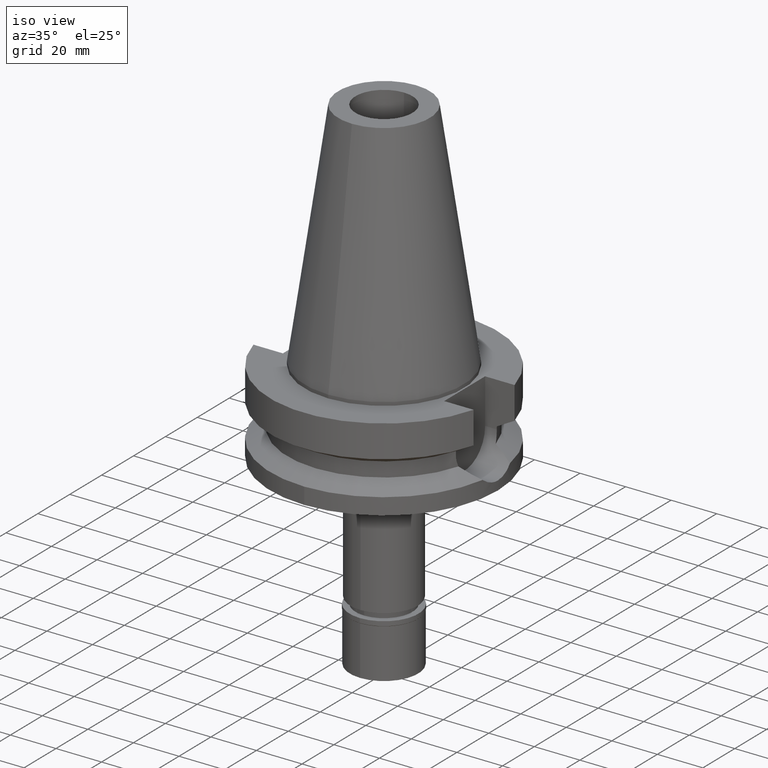
[diagram: clean part render]
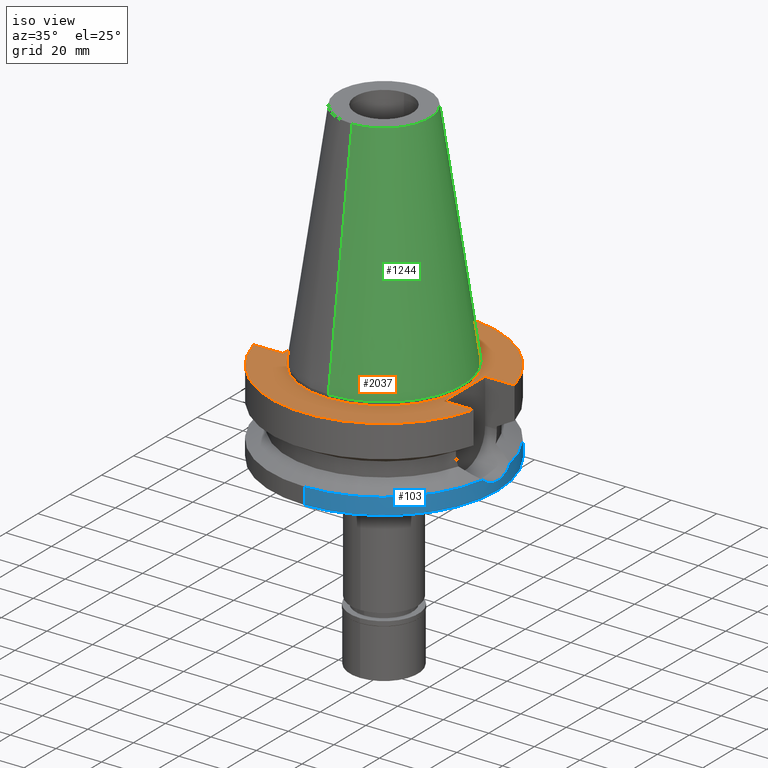
[diagram: same view with three faces highlighted in distinct colors, each labeled with its STEP entity id]
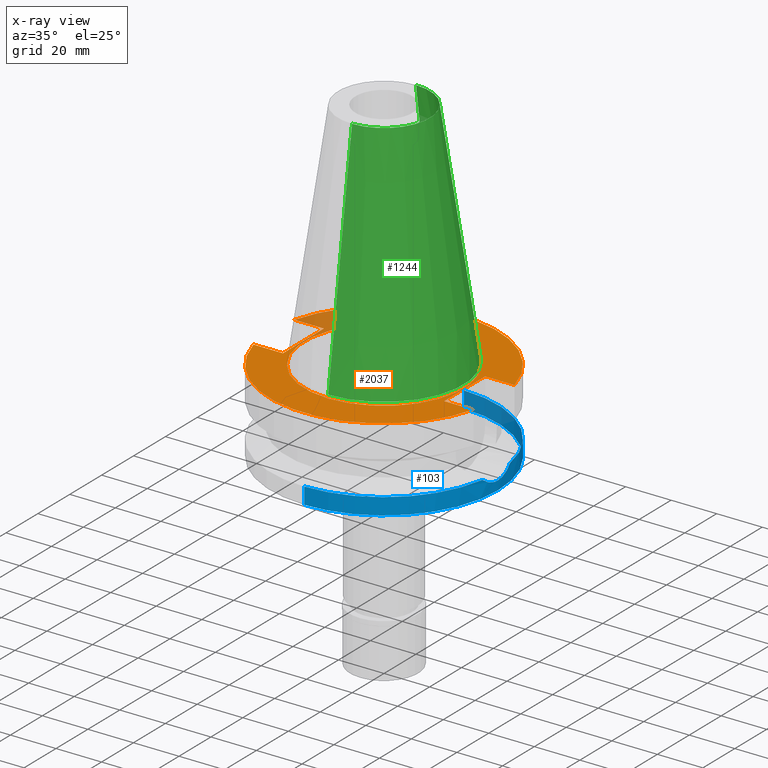
[diagram: x-ray of the same camera — body ghosted, the three highlighted faces saturated]
A machine part, iso view with three faces highlighted in distinct colors.
The next image is the same camera in x-ray (body ghosted, the three faces saturated) — at least one of them is partly hidden behind the body in this view.
Their STEP definitions:

[orange] entity #2037 — the highlighted planar face has unit normal (0, 0, -1).
#58 = EDGE_CURVE ( 'NONE', #3002, #1546, #2733, .T. ) ;
#101 = DIRECTION ( 'NONE',  ( 1.000000000000000000, 0.0000000000000000000, 0.0000000000000000000 ) ) ;
#130 = DIRECTION ( 'NONE',  ( 1.000000000000000000, 0.0000000000000000000, 0.0000000000000000000 ) ) ;
#156 = LINE ( 'NONE', #1864, #917 ) ;
#216 = EDGE_CURVE ( 'NONE', #2136, #1557, #2748, .T. ) ;
#270 = VECTOR ( 'NONE', #624, 1000.000000000000000 ) ;
#386 = CARTESIAN_POINT ( 'NONE',  ( 0.0000000000000000000, 2.601027336708999694E-14, -1.500000000000000000 ) ) ;
#501 = CARTESIAN_POINT ( 'NONE',  ( 0.0000000000000000000, 2.601027336708999694E-14, -1.500000000000000000 ) ) ;
#520 = VERTEX_POINT ( 'NONE', #1353 ) ;
#557 = EDGE_CURVE ( 'NONE', #2418, #1747, #1865, .T. ) ;
#565 = LINE ( 'NONE', #2500, #621 ) ;
#576 = CARTESIAN_POINT ( 'NONE',  ( -48.32057015392000210, -12.84999999999999964, -1.500000000000000000 ) ) ;
#608 = EDGE_CURVE ( 'NONE', #520, #1823, #3058, .T. ) ;
#619 = LINE ( 'NONE', #865, #3074 ) ;
#621 = VECTOR ( 'NONE', #101, 1000.000000000000000 ) ;
#624 = DIRECTION ( 'NONE',  ( -1.000000000000000000, 0.0000000000000000000, 0.0000000000000000000 ) ) ;
#691 = EDGE_CURVE ( 'NONE', #1823, #1114, #1102, .T. ) ;
#769 = CARTESIAN_POINT ( 'NONE',  ( 0.0000000000000000000, 34.92499999999999716, -1.500000000000000000 ) ) ;
#809 = AXIS2_PLACEMENT_3D ( 'NONE', #957, #1498, #973 ) ;
#838 = VECTOR ( 'NONE', #2952, 1000.000000000000000 ) ;
#865 = CARTESIAN_POINT ( 'NONE',  ( -35.39999999999999858, -12.84999999999999964, -1.500000000000000000 ) ) ;
#908 = CIRCLE ( 'NONE', #809, 34.92499999999999716 ) ;
#917 = VECTOR ( 'NONE', #130, 1000.000000000000000 ) ;
#957 = CARTESIAN_POINT ( 'NONE',  ( 0.0000000000000000000, 2.601027336708999694E-14, -1.500000000000000000 ) ) ;
#967 = ORIENTED_EDGE ( 'NONE', *, *, #2258, .F. ) ;
#971 = ORIENTED_EDGE ( 'NONE', *, *, #216, .F. ) ;
#973 = DIRECTION ( 'NONE',  ( 0.0000000000000000000, 1.000000000000000000, 0.0000000000000000000 ) ) ;
#991 = CARTESIAN_POINT ( 'NONE',  ( -48.32057015392000210, 12.84999999999999964, -1.500000000000000000 ) ) ;
#1001 = AXIS2_PLACEMENT_3D ( 'NONE', #2864, #2567, #1398 ) ;
#1102 = CIRCLE ( 'NONE', #1001, 50.00000000000000000 ) ;
#1114 = VERTEX_POINT ( 'NONE', #2793 ) ;
#1136 = DIRECTION ( 'NONE',  ( 0.0000000000000000000, 0.0000000000000000000, 1.000000000000000000 ) ) ;
#1192 = DIRECTION ( 'NONE',  ( 0.0000000000000000000, -1.000000000000000000, 0.0000000000000000000 ) ) ;
#1239 = PLANE ( 'NONE',  #1875 ) ;
#1280 = ORIENTED_EDGE ( 'NONE', *, *, #2812, .T. ) ;
#1353 = CARTESIAN_POINT ( 'NONE',  ( -35.39999999999999858, 12.84999999999999964, -1.500000000000000000 ) ) ;
#1398 = DIRECTION ( 'NONE',  ( 0.0000000000000000000, 1.000000000000000000, 0.0000000000000000000 ) ) ;
#1428 = DIRECTION ( 'NONE',  ( 0.0000000000000000000, 0.0000000000000000000, -1.000000000000000000 ) ) ;
#1429 = CARTESIAN_POINT ( 'NONE',  ( -35.39999999999999858, -12.84999999999999964, -1.500000000000000000 ) ) ;
#1454 = AXIS2_PLACEMENT_3D ( 'NONE', #386, #1136, #2775 ) ;
#1485 = CARTESIAN_POINT ( 'NONE',  ( 0.0000000000000000000, -34.92499999999999716, -1.500000000000000000 ) ) ;
#1498 = DIRECTION ( 'NONE',  ( 0.0000000000000000000, 0.0000000000000000000, 1.000000000000000000 ) ) ;
#1519 = ORIENTED_EDGE ( 'NONE', *, *, #557, .F. ) ;
#1546 = VERTEX_POINT ( 'NONE', #2465 ) ;
#1557 = VERTEX_POINT ( 'NONE', #576 ) ;
#1638 = LINE ( 'NONE', #3037, #2870 ) ;
#1747 = VERTEX_POINT ( 'NONE', #769 ) ;
#1823 = VERTEX_POINT ( 'NONE', #991 ) ;
#1841 = DIRECTION ( 'NONE',  ( -1.000000000000000000, 0.0000000000000000000, 0.0000000000000000000 ) ) ;
#1864 = CARTESIAN_POINT ( 'NONE',  ( 35.39999999999999858, 12.84999999999999964, -1.500000000000000000 ) ) ;
#1865 = CIRCLE ( 'NONE', #1454, 34.92499999999999716 ) ;
#1875 = AXIS2_PLACEMENT_3D ( 'NONE', #2361, #2553, #2323 ) ;
#1971 = CARTESIAN_POINT ( 'NONE',  ( 35.39999999999999858, 12.84999999999999964, -1.500000000000000000 ) ) ;
#1982 = ORIENTED_EDGE ( 'NONE', *, *, #58, .F. ) ;
#2037 = ADVANCED_FACE ( 'NONE', ( #3049, #2811 ), #1239, .F. ) ;
#2085 = EDGE_CURVE ( 'NONE', #2939, #1557, #619, .T. ) ;
#2136 = VERTEX_POINT ( 'NONE', #2266 ) ;
#2243 = ORIENTED_EDGE ( 'NONE', *, *, #691, .F. ) ;
#2258 = EDGE_CURVE ( 'NONE', #2939, #520, #1638, .T. ) ;
#2266 = CARTESIAN_POINT ( 'NONE',  ( 48.32057015392000210, -12.84999999999999964, -1.500000000000000000 ) ) ;
#2285 = ORIENTED_EDGE ( 'NONE', *, *, #2085, .T. ) ;
#2291 = CARTESIAN_POINT ( 'NONE',  ( 35.39999999999999858, 12.84999999999999964, -1.500000000000000000 ) ) ;
#2323 = DIRECTION ( 'NONE',  ( 0.0000000000000000000, -1.000000000000000000, 0.0000000000000000000 ) ) ;
#2361 = CARTESIAN_POINT ( 'NONE',  ( 0.0000000000000000000, 1.206277097159999845E-14, -1.500000000000000000 ) ) ;
#2403 = EDGE_CURVE ( 'NONE', #1747, #2418, #908, .T. ) ;
#2418 = VERTEX_POINT ( 'NONE', #1485 ) ;
#2465 = CARTESIAN_POINT ( 'NONE',  ( 35.39999999999999858, -12.84999999999999964, -1.500000000000000000 ) ) ;
#2500 = CARTESIAN_POINT ( 'NONE',  ( 35.39999999999999858, -12.84999999999999964, -1.500000000000000000 ) ) ;
#2553 = DIRECTION ( 'NONE',  ( 0.0000000000000000000, 0.0000000000000000000, -1.000000000000000000 ) ) ;
#2558 = CARTESIAN_POINT ( 'NONE',  ( -35.39999999999999858, 12.84999999999999964, -1.500000000000000000 ) ) ;
#2567 = DIRECTION ( 'NONE',  ( 0.0000000000000000000, 0.0000000000000000000, -1.000000000000000000 ) ) ;
#2568 = DIRECTION ( 'NONE',  ( 0.0000000000000000000, 1.000000000000000000, 0.0000000000000000000 ) ) ;
#2615 = ORIENTED_EDGE ( 'NONE', *, *, #3115, .F. ) ;
#2733 = LINE ( 'NONE', #2291, #838 ) ;
#2746 = EDGE_LOOP ( 'NONE', ( #2828, #1519 ) ) ;
#2748 = CIRCLE ( 'NONE', #2850, 50.00000000000000000 ) ;
#2774 = EDGE_LOOP ( 'NONE', ( #2285, #971, #2615, #1982, #1280, #2243, #2780, #967 ) ) ;
#2775 = DIRECTION ( 'NONE',  ( 0.0000000000000000000, -1.000000000000000000, 0.0000000000000000000 ) ) ;
#2780 = ORIENTED_EDGE ( 'NONE', *, *, #608, .F. ) ;
#2793 = CARTESIAN_POINT ( 'NONE',  ( 48.32057015392000210, 12.84999999999999964, -1.500000000000000000 ) ) ;
#2811 = FACE_BOUND ( 'NONE', #2746, .T. ) ;
#2812 = EDGE_CURVE ( 'NONE', #3002, #1114, #156, .T. ) ;
#2828 = ORIENTED_EDGE ( 'NONE', *, *, #2403, .F. ) ;
#2850 = AXIS2_PLACEMENT_3D ( 'NONE', #501, #1428, #1192 ) ;
#2864 = CARTESIAN_POINT ( 'NONE',  ( 0.0000000000000000000, 2.601027336708999694E-14, -1.500000000000000000 ) ) ;
#2870 = VECTOR ( 'NONE', #2568, 1000.000000000000000 ) ;
#2939 = VERTEX_POINT ( 'NONE', #1429 ) ;
#2952 = DIRECTION ( 'NONE',  ( 0.0000000000000000000, -1.000000000000000000, 0.0000000000000000000 ) ) ;
#3002 = VERTEX_POINT ( 'NONE', #1971 ) ;
#3037 = CARTESIAN_POINT ( 'NONE',  ( -35.39999999999999858, -12.84999999999999964, -1.500000000000000000 ) ) ;
#3049 = FACE_OUTER_BOUND ( 'NONE', #2774, .T. ) ;
#3058 = LINE ( 'NONE', #2558, #270 ) ;
#3074 = VECTOR ( 'NONE', #1841, 1000.000000000000000 ) ;
#3115 = EDGE_CURVE ( 'NONE', #1546, #2136, #565, .T. ) ;

[blue] entity #103 — the highlighted cylindrical surface (partial cylindrical patch) has radius 50 mm, axis along (0, 0, -1).
#37 = ORIENTED_EDGE ( 'NONE', *, *, #1073, .F. ) ;
#57 = EDGE_CURVE ( 'NONE', #1677, #1639, #264, .T. ) ;
#68 = AXIS2_PLACEMENT_3D ( 'NONE', #358, #2301, #1093 ) ;
#70 = CARTESIAN_POINT ( 'NONE',  ( 49.75681412769522183, -4.924294299731083235, -33.01930483956995488 ) ) ;
#88 = CARTESIAN_POINT ( 'NONE',  ( 49.73404098627922565, -5.148335372783573227, -32.92469446692175694 ) ) ;
#103 = ADVANCED_FACE ( 'NONE', ( #858 ), #2536, .T. ) ;
#125 = CARTESIAN_POINT ( 'NONE',  ( 49.79509875745610259, 4.521875388834661891, -33.17810981395287229 ) ) ;
#128 = CARTESIAN_POINT ( 'NONE',  ( 49.98261190536401699, -1.500633726765293607, -33.93573757106626942 ) ) ;
#140 = CARTESIAN_POINT ( 'NONE',  ( 49.79347791494136288, 4.539715724449447265, -33.17137768956639832 ) ) ;
#153 = B_SPLINE_CURVE_WITH_KNOTS ( 'NONE', 3,
 ( #2837, #166, #1367, #1156, #1107, #3094, #2332, #932, #2122, #3043, #125, #140, #3077, #919, #610, #2545, #671, #883, #3030 ),
 .UNSPECIFIED., .F., .F.,
 ( 4, 2, 2, 1, 1, 1, 1, 1, 2, 2, 2, 4 ),
 ( 0.0000000000000000000, 0.2500000000000116018, 0.3750000000000175415, 0.4375000000000204836, 0.4687500000000219269, 0.4843750000000222045, 0.4921875000000227596, 0.4960937500000232037, 0.4980468750000228706, 0.5000000000000225375, 0.7500000000000112133, 1.000000000000000000 ),
 .UNSPECIFIED. ) ;
#166 = CARTESIAN_POINT ( 'NONE',  ( 50.00000000000002132, 0.7410986930392226002, -34.00000000000000711 ) ) ;
#209 = DIRECTION ( 'NONE',  ( 0.0000000000000000000, -2.054527022025999694E-14, -1.000000000000000000 ) ) ;
#241 = ORIENTED_EDGE ( 'NONE', *, *, #57, .T. ) ;
#264 = CIRCLE ( 'NONE', #1199, 50.00000000000000000 ) ;
#287 = VERTEX_POINT ( 'NONE', #1983 ) ;
#356 = CARTESIAN_POINT ( 'NONE',  ( 49.76777238602569753, -4.813761785251925218, -33.06473290383409136 ) ) ;
#358 = CARTESIAN_POINT ( 'NONE',  ( 0.0000000000000000000, 2.601027336708999694E-14, 112.3900000000000006 ) ) ;
#437 = CARTESIAN_POINT ( 'NONE',  ( 0.0000000000000000000, 2.601027336708999694E-14, -38.00000000000000000 ) ) ;
#493 = DIRECTION ( 'NONE',  ( 0.0000000000000000000, 0.0000000000000000000, -1.000000000000000000 ) ) ;
#533 = CARTESIAN_POINT ( 'NONE',  ( 49.66531744478927379, -5.772426571267776474, -32.63572039557347892 ) ) ;
#547 = VECTOR ( 'NONE', #209, 1000.000000000000000 ) ;
#594 = CIRCLE ( 'NONE', #850, 50.00000000000000000 ) ;
#610 = CARTESIAN_POINT ( 'NONE',  ( 49.73972550773450507, 5.127766567620081872, -32.94800242017353753 ) ) ;
#626 = EDGE_CURVE ( 'NONE', #1294, #1639, #153, .T. ) ;
#671 = CARTESIAN_POINT ( 'NONE',  ( 49.49359661729344850, 7.117097516581662120, -31.87764506110919882 ) ) ;
#719 = CARTESIAN_POINT ( 'NONE',  ( 49.26250064874000145, 8.556052234130000045, -30.73730776426999967 ) ) ;
#789 = VERTEX_POINT ( 'NONE', #2911 ) ;
#797 = CARTESIAN_POINT ( 'NONE',  ( 49.78563763144784815, -4.625094769537975381, -33.13881278609864722 ) ) ;
#850 = AXIS2_PLACEMENT_3D ( 'NONE', #1720, #493, #2188 ) ;
#858 = FACE_OUTER_BOUND ( 'NONE', #2531, .T. ) ;
#883 = CARTESIAN_POINT ( 'NONE',  ( 49.38718636596117761, 7.838159208524845489, -31.37798086840150447 ) ) ;
#919 = CARTESIAN_POINT ( 'NONE',  ( 49.79171236025676706, 4.559090087505518696, -33.16404260905685675 ) ) ;
#932 = CARTESIAN_POINT ( 'NONE',  ( 49.82079234875429563, 4.230048365264067911, -33.28454251584690837 ) ) ;
#979 = VERTEX_POINT ( 'NONE', #983 ) ;
#983 = CARTESIAN_POINT ( 'NONE',  ( 0.0000000000000000000, -50.00000000000000000, -38.00000000000000000 ) ) ;
#1047 = CARTESIAN_POINT ( 'NONE',  ( 49.86089524291224251, -3.802281370894036172, -33.45152773113399292 ) ) ;
#1051 = VERTEX_POINT ( 'NONE', #1947 ) ;
#1073 = EDGE_CURVE ( 'NONE', #287, #1294, #1885, .T. ) ;
#1092 = CARTESIAN_POINT ( 'NONE',  ( 49.78850586346350582, -4.594055356242410681, -33.15072133027130263 ) ) ;
#1093 = DIRECTION ( 'NONE',  ( 0.0000000000000000000, -1.000000000000000000, 0.0000000000000000000 ) ) ;
#1107 = CARTESIAN_POINT ( 'NONE',  ( 49.90869784561251521, 3.032821729406113942, -33.64331055718601249 ) ) ;
#1156 = CARTESIAN_POINT ( 'NONE',  ( 49.93043645380000584, 2.648747844465216605, -33.73005492428349328 ) ) ;
#1170 = LINE ( 'NONE', #1389, #3117 ) ;
#1198 = LINE ( 'NONE', #1948, #547 ) ;
#1199 = AXIS2_PLACEMENT_3D ( 'NONE', #2521, #1326, #2973 ) ;
#1246 = CARTESIAN_POINT ( 'NONE',  ( 49.62581592551390486, -6.100685968983930785, -32.46624463441564501 ) ) ;
#1290 = CARTESIAN_POINT ( 'NONE',  ( 49.79079948641094688, -4.569077029215530494, -33.16024877063336618 ) ) ;
#1294 = VERTEX_POINT ( 'NONE', #2856 ) ;
#1326 = DIRECTION ( 'NONE',  ( 0.0000000000000000000, 0.0000000000000000000, -1.000000000000000000 ) ) ;
#1367 = CARTESIAN_POINT ( 'NONE',  ( 49.98260911345001745, 1.500697552022849823, -33.93573404320405018 ) ) ;
#1389 = CARTESIAN_POINT ( 'NONE',  ( 0.0000000000000000000, 50.00000000000000000, -30.73730776426999967 ) ) ;
#1482 = CARTESIAN_POINT ( 'NONE',  ( 49.38719034089409377, -7.838136322342054818, -31.37800129283974115 ) ) ;
#1590 = EDGE_CURVE ( 'NONE', #979, #789, #2274, .T. ) ;
#1639 = VERTEX_POINT ( 'NONE', #719 ) ;
#1677 = VERTEX_POINT ( 'NONE', #1988 ) ;
#1683 = DIRECTION ( 'NONE',  ( 0.0000000000000000000, 2.152361642122000014E-14, -1.000000000000000000 ) ) ;
#1720 = CARTESIAN_POINT ( 'NONE',  ( 0.0000000000000000000, 0.0000000000000000000, -30.73730776426999967 ) ) ;
#1774 = CARTESIAN_POINT ( 'NONE',  ( 49.78972506718459101, -4.580790312870194114, -33.15578537449392371 ) ) ;
#1805 = EDGE_CURVE ( 'NONE', #287, #1051, #594, .T. ) ;
#1885 = B_SPLINE_CURVE_WITH_KNOTS ( 'NONE', 3,
 ( #2677, #1482, #2442, #1246, #533, #2000, #88, #70, #356, #2951, #797, #1092, #1774, #2718, #1290, #1047, #2016, #128, #3080, #2380 ),
 .UNSPECIFIED., .F., .F.,
 ( 4, 2, 2, 2, 1, 1, 1, 1, 2, 2, 2, 4 ),
 ( 0.0000000000000000000, 0.2499999999999525935, 0.3749999999999290012, 0.4374999999999174549, 0.4687499999999117373, 0.4843749999999090727, 0.4921874999999077960, 0.4960937499999074074, 0.4980468749999072409, 0.4999999999999070743, 0.7499999999999534817, 1.000000000000000000 ),
 .UNSPECIFIED. ) ;
#1947 = CARTESIAN_POINT ( 'NONE',  ( 0.0000000000000000000, -50.00000000000000000, -30.73730776426999967 ) ) ;
#1948 = CARTESIAN_POINT ( 'NONE',  ( 0.0000000000000000000, -50.00000000000000000, -30.73730776426999967 ) ) ;
#1983 = CARTESIAN_POINT ( 'NONE',  ( 49.26250064874000145, -8.556052234130000045, -30.73730776426999967 ) ) ;
#1987 = ORIENTED_EDGE ( 'NONE', *, *, #2449, .T. ) ;
#1988 = CARTESIAN_POINT ( 'NONE',  ( 0.0000000000000000000, 50.00000000000000000, -30.73730776426999967 ) ) ;
#2000 = CARTESIAN_POINT ( 'NONE',  ( 49.71771672566180200, -5.301668118691679865, -32.85661610119427678 ) ) ;
#2016 = CARTESIAN_POINT ( 'NONE',  ( 49.91305952682014180, -3.031241889599813000, -33.66153705284913400 ) ) ;
#2122 = CARTESIAN_POINT ( 'NONE',  ( 49.80628862110419419, 4.396903292038326860, -33.22452887387221665 ) ) ;
#2125 = ORIENTED_EDGE ( 'NONE', *, *, #1805, .T. ) ;
#2188 = DIRECTION ( 'NONE',  ( 0.9852500129747439050, -0.1711210446826074982, 0.0000000000000000000 ) ) ;
#2269 = EDGE_CURVE ( 'NONE', #1677, #789, #1170, .T. ) ;
#2274 = CIRCLE ( 'NONE', #2372, 50.00000000000000000 ) ;
#2301 = DIRECTION ( 'NONE',  ( 0.0000000000000000000, 0.0000000000000000000, -1.000000000000000000 ) ) ;
#2332 = CARTESIAN_POINT ( 'NONE',  ( 49.84837320789218040, 3.895659733551886106, -33.39815592400708510 ) ) ;
#2372 = AXIS2_PLACEMENT_3D ( 'NONE', #437, #2595, #2859 ) ;
#2380 = CARTESIAN_POINT ( 'NONE',  ( 50.00000000000000000, 1.759756218034999780E-14, -34.00000000000000000 ) ) ;
#2442 = CARTESIAN_POINT ( 'NONE',  ( 49.49360537160681872, -7.117033889162193816, -31.87769203011113461 ) ) ;
#2449 = EDGE_CURVE ( 'NONE', #1051, #979, #1198, .T. ) ;
#2498 = ORIENTED_EDGE ( 'NONE', *, *, #626, .F. ) ;
#2521 = CARTESIAN_POINT ( 'NONE',  ( 0.0000000000000000000, 0.0000000000000000000, -30.73730776426999967 ) ) ;
#2531 = EDGE_LOOP ( 'NONE', ( #2125, #1987, #2716, #3020, #241, #2498, #37 ) ) ;
#2536 = CYLINDRICAL_SURFACE ( 'NONE', #68, 50.00000000000000000 ) ;
#2545 = CARTESIAN_POINT ( 'NONE',  ( 49.66986618818009447, 5.762088535499768405, -32.66233170677145381 ) ) ;
#2595 = DIRECTION ( 'NONE',  ( 0.0000000000000000000, 0.0000000000000000000, 1.000000000000000000 ) ) ;
#2677 = CARTESIAN_POINT ( 'NONE',  ( 49.26250064874000145, -8.556052234130000045, -30.73730776426999967 ) ) ;
#2716 = ORIENTED_EDGE ( 'NONE', *, *, #1590, .T. ) ;
#2718 = CARTESIAN_POINT ( 'NONE',  ( 49.79053563887168821, -4.571955316139179715, -33.15915263189389606 ) ) ;
#2837 = CARTESIAN_POINT ( 'NONE',  ( 50.00000000000000000, 1.759756218034999780E-14, -34.00000000000000000 ) ) ;
#2856 = CARTESIAN_POINT ( 'NONE',  ( 50.00000000000000000, 1.759756218034999780E-14, -34.00000000000000000 ) ) ;
#2859 = DIRECTION ( 'NONE',  ( 0.0000000000000000000, -1.000000000000000000, 0.0000000000000000000 ) ) ;
#2911 = CARTESIAN_POINT ( 'NONE',  ( 0.0000000000000000000, 50.00000000000000000, -38.00000000000000000 ) ) ;
#2951 = CARTESIAN_POINT ( 'NONE',  ( 49.77980747408390982, -4.687522623544541744, -33.11462325490769842 ) ) ;
#2973 = DIRECTION ( 'NONE',  ( 0.0000000000000000000, 1.000000000000000000, 0.0000000000000000000 ) ) ;
#3020 = ORIENTED_EDGE ( 'NONE', *, *, #2269, .F. ) ;
#3030 = CARTESIAN_POINT ( 'NONE',  ( 49.26250064874000145, 8.556052234130000045, -30.73730776426999967 ) ) ;
#3043 = CARTESIAN_POINT ( 'NONE',  ( 49.79885843275885549, 4.480234919315823738, -33.19371722165244876 ) ) ;
#3077 = CARTESIAN_POINT ( 'NONE',  ( 49.79239523035390391, 4.551608024957777943, -33.16687999445605328 ) ) ;
#3080 = CARTESIAN_POINT ( 'NONE',  ( 49.99999999999999289, -0.7410781195857881753, -34.00000000000000711 ) ) ;
#3094 = CARTESIAN_POINT ( 'NONE',  ( 49.86956835087501361, 3.608176225507641277, -33.48463187151707388 ) ) ;
#3117 = VECTOR ( 'NONE', #1683, 1000.000000000000000 ) ;

[green] entity #1244 — the highlighted conical surface has half-angle 8.297 deg.
#29 = AXIS2_PLACEMENT_3D ( 'NONE', #1382, #903, #1355 ) ;
#124 = ORIENTED_EDGE ( 'NONE', *, *, #269, .F. ) ;
#126 = VECTOR ( 'NONE', #1273, 1000.000000000000114 ) ;
#231 = EDGE_CURVE ( 'NONE', #1492, #301, #1502, .T. ) ;
#269 = EDGE_CURVE ( 'NONE', #2466, #1492, #1970, .T. ) ;
#273 = CARTESIAN_POINT ( 'NONE',  ( 0.0000000000000000000, -20.07942971896000017, 101.7999999999999972 ) ) ;
#283 = CARTESIAN_POINT ( 'NONE',  ( 0.0000000000000000000, 34.92499999999999716, 4.760636329592999411E-13 ) ) ;
#301 = VERTEX_POINT ( 'NONE', #531 ) ;
#332 = ORIENTED_EDGE ( 'NONE', *, *, #1522, .T. ) ;
#439 = CONICAL_SURFACE ( 'NONE', #2015, 27.50221485948000222, 0.1448099680379422438 ) ;
#531 = CARTESIAN_POINT ( 'NONE',  ( 0.0000000000000000000, -34.92499999999999716, 4.760636329592999411E-13 ) ) ;
#782 = CARTESIAN_POINT ( 'NONE',  ( 0.0000000000000000000, 20.07942971896000017, 101.7999999999999972 ) ) ;
#890 = AXIS2_PLACEMENT_3D ( 'NONE', #2208, #1444, #1493 ) ;
#903 = DIRECTION ( 'NONE',  ( 0.0000000000000000000, 0.0000000000000000000, -1.000000000000000000 ) ) ;
#1138 = EDGE_CURVE ( 'NONE', #2466, #2495, #2667, .T. ) ;
#1190 = DIRECTION ( 'NONE',  ( 0.0000000000000000000, -1.000000000000000000, 0.0000000000000000000 ) ) ;
#1209 = CARTESIAN_POINT ( 'NONE',  ( 0.0000000000000000000, 1.847992019912999597E-14, 50.89999999999999858 ) ) ;
#1244 = ADVANCED_FACE ( 'NONE', ( #2177 ), #439, .T. ) ;
#1273 = DIRECTION ( 'NONE',  ( 0.0000000000000000000, -0.1443043893538948075, -0.9895333461855641000 ) ) ;
#1355 = DIRECTION ( 'NONE',  ( 0.0000000000000000000, 1.000000000000000000, 0.0000000000000000000 ) ) ;
#1382 = CARTESIAN_POINT ( 'NONE',  ( 0.0000000000000000000, 1.847992019912999597E-14, 101.7999999999999972 ) ) ;
#1444 = DIRECTION ( 'NONE',  ( 0.0000000000000000000, 0.0000000000000000000, -1.000000000000000000 ) ) ;
#1492 = VERTEX_POINT ( 'NONE', #283 ) ;
#1493 = DIRECTION ( 'NONE',  ( 0.0000000000000000000, 1.000000000000000000, 0.0000000000000000000 ) ) ;
#1502 = CIRCLE ( 'NONE', #890, 34.92499999999999716 ) ;
#1522 = EDGE_CURVE ( 'NONE', #2495, #301, #1798, .T. ) ;
#1531 = EDGE_LOOP ( 'NONE', ( #2156, #332, #2523, #124 ) ) ;
#1692 = DIRECTION ( 'NONE',  ( 0.0000000000000000000, 0.0000000000000000000, -1.000000000000000000 ) ) ;
#1744 = CARTESIAN_POINT ( 'NONE',  ( 0.0000000000000000000, 20.07942971896000017, 101.7999999999999972 ) ) ;
#1767 = CARTESIAN_POINT ( 'NONE',  ( 0.0000000000000000000, -20.07942971896000017, 101.7999999999999972 ) ) ;
#1798 = LINE ( 'NONE', #1767, #126 ) ;
#1970 = LINE ( 'NONE', #1744, #2058 ) ;
#2015 = AXIS2_PLACEMENT_3D ( 'NONE', #1209, #1692, #1190 ) ;
#2058 = VECTOR ( 'NONE', #2688, 1000.000000000000114 ) ;
#2156 = ORIENTED_EDGE ( 'NONE', *, *, #1138, .T. ) ;
#2177 = FACE_OUTER_BOUND ( 'NONE', #1531, .T. ) ;
#2208 = CARTESIAN_POINT ( 'NONE',  ( 0.0000000000000000000, 1.847992019912999597E-14, 3.979039320256999774E-13 ) ) ;
#2466 = VERTEX_POINT ( 'NONE', #782 ) ;
#2495 = VERTEX_POINT ( 'NONE', #273 ) ;
#2523 = ORIENTED_EDGE ( 'NONE', *, *, #231, .F. ) ;
#2667 = CIRCLE ( 'NONE', #29, 20.07942971896000017 ) ;
#2688 = DIRECTION ( 'NONE',  ( 0.0000000000000000000, 0.1443043893538948075, -0.9895333461855641000 ) ) ;